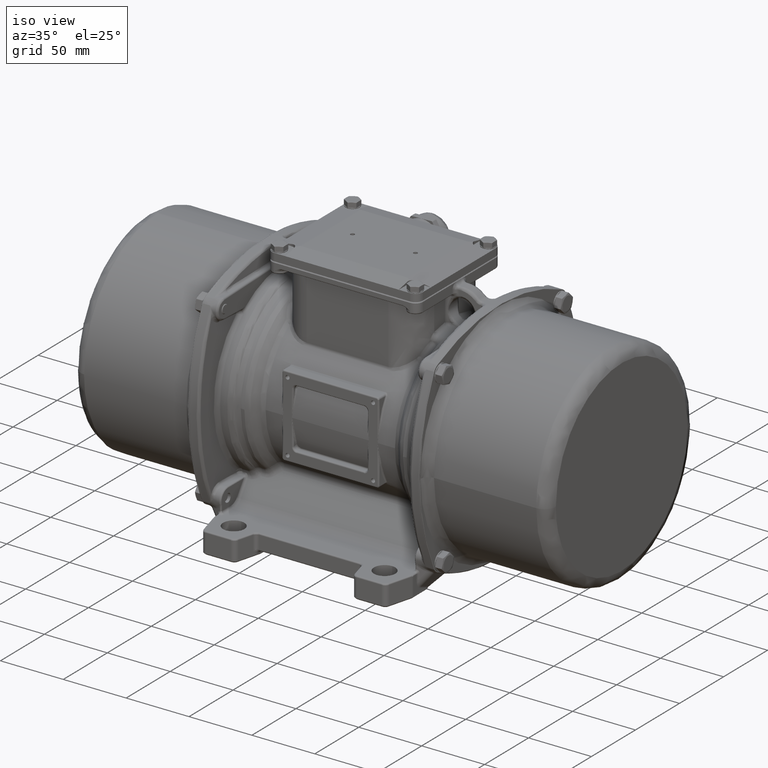
[diagram: clean part render]
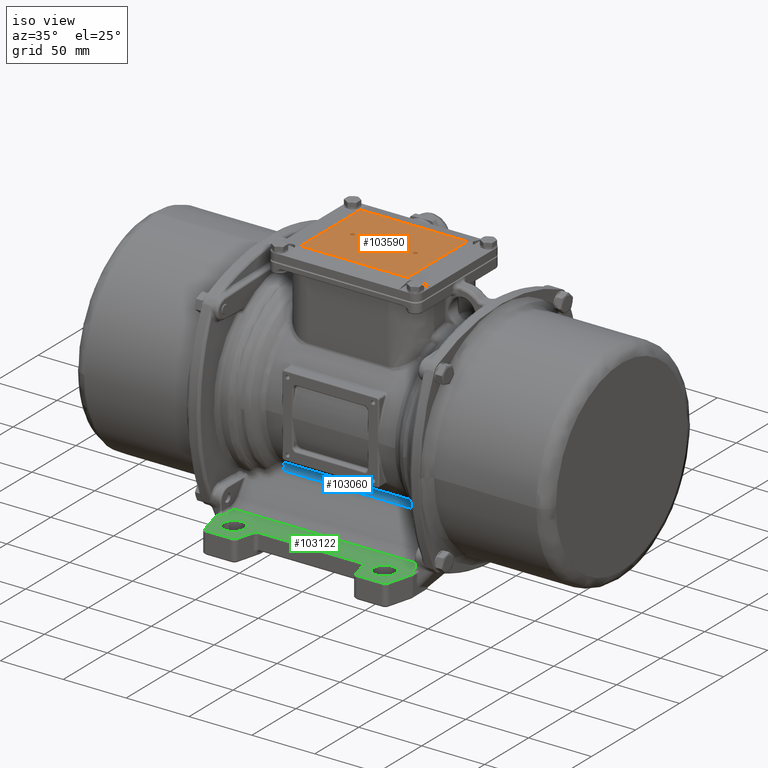
[diagram: same view with three faces highlighted in distinct colors, each labeled with its STEP entity id]
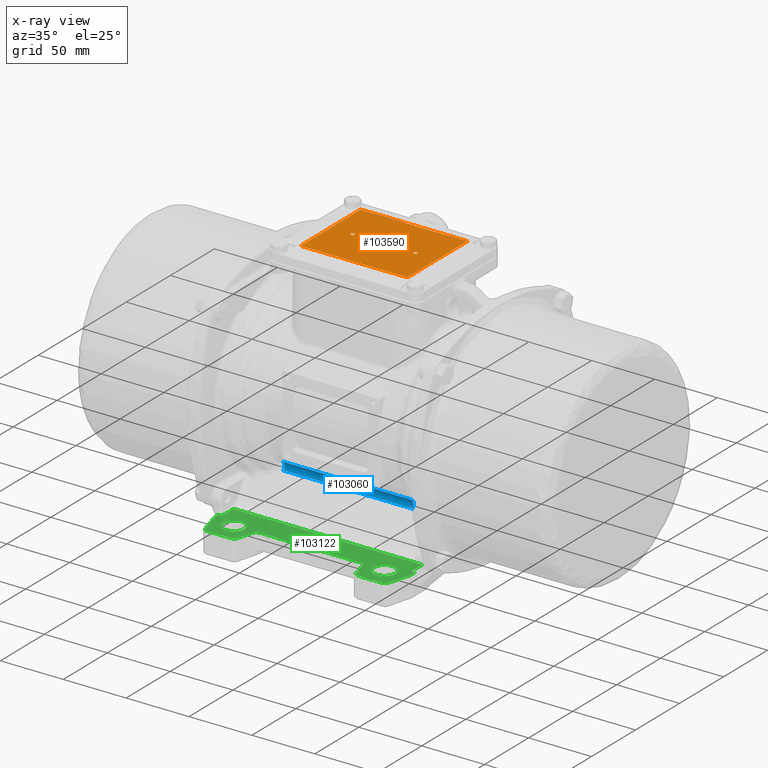
[diagram: x-ray of the same camera — body ghosted, the three highlighted faces saturated]
A machine part, iso view with three faces highlighted in distinct colors.
The next image is the same camera in x-ray (body ghosted, the three faces saturated) — at least one of them is partly hidden behind the body in this view.
Their STEP definitions:

[orange] entity #103590 — the highlighted planar face has unit normal (0, 0, 1).
#15173 = EDGE_CURVE ( 'NONE', #136444, #136411, #65429, .T. ) ;
#15203 = EDGE_CURVE ( 'NONE', #136368, #136385, #65531, .T. ) ;
#15311 = EDGE_CURVE ( 'NONE', #110381, #110453, #65780, .T. ) ;
#15321 = EDGE_CURVE ( 'NONE', #110414, #110453, #65855, .T. ) ;
#15331 = EDGE_CURVE ( 'NONE', #110381, #110508, #65933, .T. ) ;
#15333 = EDGE_CURVE ( 'NONE', #110508, #110414, #65949, .T. ) ;
#20590 = FACE_OUTER_BOUND ( 'NONE', #211546, .T. ) ;
#20604 = FACE_BOUND ( 'NONE', #211531, .T. ) ;
#20612 = FACE_BOUND ( 'NONE', #211542, .T. ) ;
#31308 = AXIS2_PLACEMENT_3D ( 'NONE', #188839, #188851, #188852 ) ;
#31337 = AXIS2_PLACEMENT_3D ( 'NONE', #64050, #64053, #64055 ) ;
#46465 = CARTESIAN_POINT ( 'NONE',  ( 20.00000715255210100, 1.599996662135698200, 41.00000190734859700 ) ) ;
#46499 = CARTESIAN_POINT ( 'NONE',  ( 20.00000715255210100, -1.600003337864301900, 41.00000190734859700 ) ) ;
#46551 = CARTESIAN_POINT ( 'NONE',  ( -29.99999284744789900, -1.600003337864301900, 41.00000190734859700 ) ) ;
#46615 = CARTESIAN_POINT ( 'NONE',  ( -29.99999284744789900, 1.599996662135698200, 41.00000190734859700 ) ) ;
#64050 = CARTESIAN_POINT ( 'NONE',  ( 20.00000715255210100, -3.337864301880305100E-006, 41.00000190734859700 ) ) ;
#64053 = DIRECTION ( 'NONE',  ( 0.0000000000000000000, -1.309383279245300100E-015, -1.000000000000000000 ) ) ;
#64055 = DIRECTION ( 'NONE',  ( 0.0000000000000000000, 1.000000000000000000, 0.0000000000000000000 ) ) ;
#65079 = CARTESIAN_POINT ( 'NONE',  ( -4.999999083579640000, 33.99999990953830300, 41.00000190734859700 ) ) ;
#65081 = DIRECTION ( 'NONE',  ( -1.000000000000000000, 0.0000000000000000000, 0.0000000000000000000 ) ) ;
#65140 = CARTESIAN_POINT ( 'NONE',  ( -47.49999908357960300, -1.279080140154791900E-005, 41.00000190734859700 ) ) ;
#65155 = DIRECTION ( 'NONE',  ( 0.0000000000000000000, 1.000000000000000000, 0.0000000000000000000 ) ) ;
#65200 = CARTESIAN_POINT ( 'NONE',  ( 37.50000091642039700, -1.175615111162486000E-005, 41.00000190734859700 ) ) ;
#65202 = DIRECTION ( 'NONE',  ( 0.0000000000000000000, -1.000000000000000000, 0.0000000000000000000 ) ) ;
#65209 = CARTESIAN_POINT ( 'NONE',  ( -4.999999419126700300, -34.00000009071810300, 41.00000190734859700 ) ) ;
#65211 = DIRECTION ( 'NONE',  ( -1.000000000000000000, 0.0000000000000000000, 0.0000000000000000000 ) ) ;
#65429 = CIRCLE ( 'NONE', #31308, 1.600000000000000100 ) ;
#65531 = CIRCLE ( 'NONE', #31337, 1.600000000000000100 ) ;
#65780 = LINE ( 'NONE', #65079, #65783 ) ;
#65783 = VECTOR ( 'NONE', #65081, 1000.000000000000000 ) ;
#65826 = VECTOR ( 'NONE', #65155, 1000.000000000000000 ) ;
#65855 = LINE ( 'NONE', #65140, #65826 ) ;
#65933 = LINE ( 'NONE', #65200, #65937 ) ;
#65937 = VECTOR ( 'NONE', #65202, 1000.000000000000000 ) ;
#65949 = LINE ( 'NONE', #65209, #65954 ) ;
#65954 = VECTOR ( 'NONE', #65211, 1000.000000000000000 ) ;
#67187 = CIRCLE ( 'NONE', #211773, 1.600000000000000100 ) ;
#67212 = CIRCLE ( 'NONE', #211788, 1.600000000000000100 ) ;
#82566 = CARTESIAN_POINT ( 'NONE',  ( 20.00000715255210100, -3.337864301880305100E-006, 41.00000190734859700 ) ) ;
#82592 = DIRECTION ( 'NONE',  ( 0.0000000000000000000, -1.309383279245300100E-015, -1.000000000000000000 ) ) ;
#82595 = DIRECTION ( 'NONE',  ( 0.0000000000000000000, 1.000000000000000000, 0.0000000000000000000 ) ) ;
#82727 = CARTESIAN_POINT ( 'NONE',  ( -29.99999284744789900, -3.337864301880305100E-006, 41.00000190734859700 ) ) ;
#82732 = DIRECTION ( 'NONE',  ( 0.0000000000000000000, -1.309383279245300100E-015, -1.000000000000000000 ) ) ;
#82735 = DIRECTION ( 'NONE',  ( 0.0000000000000000000, 1.000000000000000000, 0.0000000000000000000 ) ) ;
#103590 = ADVANCED_FACE ( 'NONE', ( #20604, #20612, #20590 ), #113558, .T. ) ;
#110381 = VERTEX_POINT ( 'NONE', #239608 ) ;
#110414 = VERTEX_POINT ( 'NONE', #239632 ) ;
#110453 = VERTEX_POINT ( 'NONE', #239659 ) ;
#110508 = VERTEX_POINT ( 'NONE', #239700 ) ;
#113558 = PLANE ( 'NONE',  #210592 ) ;
#113571 = CARTESIAN_POINT ( 'NONE',  ( -47.49999908383610100, -34.00000009097460200, 41.00000190734859700 ) ) ;
#113592 = DIRECTION ( 'NONE',  ( 0.0000000000000000000, 0.0000000000000000000, 1.000000000000000000 ) ) ;
#113595 = DIRECTION ( 'NONE',  ( 1.000000000000000000, 0.0000000000000000000, 0.0000000000000000000 ) ) ;
#121501 = EDGE_CURVE ( 'NONE', #136385, #136368, #67187, .T. ) ;
#121509 = EDGE_CURVE ( 'NONE', #136411, #136444, #67212, .T. ) ;
#136368 = VERTEX_POINT ( 'NONE', #46465 ) ;
#136385 = VERTEX_POINT ( 'NONE', #46499 ) ;
#136411 = VERTEX_POINT ( 'NONE', #46551 ) ;
#136444 = VERTEX_POINT ( 'NONE', #46615 ) ;
#188839 = CARTESIAN_POINT ( 'NONE',  ( -29.99999284744789900, -3.337864301880305100E-006, 41.00000190734859700 ) ) ;
#188851 = DIRECTION ( 'NONE',  ( 0.0000000000000000000, -1.309383279245300100E-015, -1.000000000000000000 ) ) ;
#188852 = DIRECTION ( 'NONE',  ( 0.0000000000000000000, 1.000000000000000000, 0.0000000000000000000 ) ) ;
#210592 = AXIS2_PLACEMENT_3D ( 'NONE', #113571, #113592, #113595 ) ;
#211531 = EDGE_LOOP ( 'NONE', ( #221865, #221871 ) ) ;
#211542 = EDGE_LOOP ( 'NONE', ( #221875, #221880 ) ) ;
#211546 = EDGE_LOOP ( 'NONE', ( #221884, #221888, #221894, #221898 ) ) ;
#211773 = AXIS2_PLACEMENT_3D ( 'NONE', #82566, #82592, #82595 ) ;
#211788 = AXIS2_PLACEMENT_3D ( 'NONE', #82727, #82732, #82735 ) ;
#221865 = ORIENTED_EDGE ( 'NONE', *, *, #15203, .T. ) ;
#221871 = ORIENTED_EDGE ( 'NONE', *, *, #121501, .T. ) ;
#221875 = ORIENTED_EDGE ( 'NONE', *, *, #15173, .T. ) ;
#221880 = ORIENTED_EDGE ( 'NONE', *, *, #121509, .T. ) ;
#221884 = ORIENTED_EDGE ( 'NONE', *, *, #15321, .F. ) ;
#221888 = ORIENTED_EDGE ( 'NONE', *, *, #15333, .F. ) ;
#221894 = ORIENTED_EDGE ( 'NONE', *, *, #15331, .F. ) ;
#221898 = ORIENTED_EDGE ( 'NONE', *, *, #15311, .T. ) ;
#239608 = CARTESIAN_POINT ( 'NONE',  ( 37.50000091657879900, 33.99999990940705200, 41.00000190733504700 ) ) ;
#239632 = CARTESIAN_POINT ( 'NONE',  ( -47.49999908357960300, -34.00000009071810300, 41.00000190734859700 ) ) ;
#239659 = CARTESIAN_POINT ( 'NONE',  ( -47.49999908373800400, 33.99999990940705200, 41.00000190733499700 ) ) ;
#239700 = CARTESIAN_POINT ( 'NONE',  ( 37.50000091642039700, -34.00000009071810300, 41.00000190734859700 ) ) ;

[blue] entity #103060 — the highlighted cylindrical surface (edge-blend (fillet) strip) has radius 5 mm, axis along (1, 0, 0).
#3709 = EDGE_CURVE ( 'NONE', #137364, #137360, #64981, .T. ) ;
#15590 = ORIENTED_EDGE ( 'NONE', *, *, #241487, .F. ) ;
#15592 = ORIENTED_EDGE ( 'NONE', *, *, #240934, .T. ) ;
#15594 = ORIENTED_EDGE ( 'NONE', *, *, #3709, .T. ) ;
#15596 = ORIENTED_EDGE ( 'NONE', *, *, #240932, .T. ) ;
#19595 = VECTOR ( 'NONE', #128195, 1000.000000000000000 ) ;
#19600 = LINE ( 'NONE', #128191, #19595 ) ;
#19962 = CYLINDRICAL_SURFACE ( 'NONE', #210143, 5.000000000000004400 ) ;
#19963 = FACE_OUTER_BOUND ( 'NONE', #121821, .T. ) ;
#43470 = DIRECTION ( 'NONE',  ( 2.775557561562889000E-015, 0.0000000000000000000, -1.000000000000000000 ) ) ;
#43621 = DIRECTION ( 'NONE',  ( 1.000000000000000000, 8.769931600198920200E-016, 2.428596443132010400E-015 ) ) ;
#43623 = CARTESIAN_POINT ( 'NONE',  ( -56.42893219361440100, -44.87479423535705100, -117.3968248936609900 ) ) ;
#47901 = CARTESIAN_POINT ( 'NONE',  ( -56.42893219365289800, -41.47518861136869400, -113.7303986225696100 ) ) ;
#47905 = CARTESIAN_POINT ( 'NONE',  ( 46.42890622874769900, -41.47518861136869400, -113.7303986225696100 ) ) ;
#55827 = CARTESIAN_POINT ( 'NONE',  ( 46.42890622869200000, -40.77903401391205300, -120.2647070754160000 ) ) ;
#55871 = CARTESIAN_POINT ( 'NONE',  ( -56.42893219361440100, -40.77903401391205300, -120.2647070754160000 ) ) ;
#64981 = LINE ( 'NONE', #187256, #65005 ) ;
#65005 = VECTOR ( 'NONE', #187257, 1000.000000000000000 ) ;
#96346 = CARTESIAN_POINT ( 'NONE',  ( -56.42893219365289800, -41.47518861136869400, -113.7303986225696100 ) ) ;
#96357 = CARTESIAN_POINT ( 'NONE',  ( -56.42893219361439300, -41.03704868611879400, -114.1366533359506700 ) ) ;
#96375 = CARTESIAN_POINT ( 'NONE',  ( 46.42890622869200700, -40.43632053978702600, -119.7752615104607500 ) ) ;
#96380 = CARTESIAN_POINT ( 'NONE',  ( 46.42890622869200000, -40.77903401391205300, -120.2647070754160000 ) ) ;
#96383 = CARTESIAN_POINT ( 'NONE',  ( -56.42893219361440800, -40.67262008694561400, -114.6221642093927900 ) ) ;
#96386 = CARTESIAN_POINT ( 'NONE',  ( -56.42893219361437900, -40.13713735691928300, -115.6904788594133000 ) ) ;
#96389 = CARTESIAN_POINT ( 'NONE',  ( -56.42893219361439300, -39.96622974702847800, -116.2729903193926600 ) ) ;
#96392 = CARTESIAN_POINT ( 'NONE',  ( -56.42893219361440800, -39.83963225351630700, -117.4612710186558500 ) ) ;
#96395 = CARTESIAN_POINT ( 'NONE',  ( -56.42893219361438600, -39.88397701001599000, -118.0667151157422800 ) ) ;
#96397 = CARTESIAN_POINT ( 'NONE',  ( -56.42893219361438600, -40.18236197580523600, -119.2238686741760600 ) ) ;
#96400 = CARTESIAN_POINT ( 'NONE',  ( -56.42893219361438600, -40.43632053978700500, -119.7752615104607900 ) ) ;
#96403 = CARTESIAN_POINT ( 'NONE',  ( -56.42893219361440100, -40.77903401391205300, -120.2647070754160000 ) ) ;
#96414 = CARTESIAN_POINT ( 'NONE',  ( 46.42890622869199300, -40.18236197580522200, -119.2238686741760000 ) ) ;
#96417 = CARTESIAN_POINT ( 'NONE',  ( 46.42890622869200000, -39.88397701001591100, -118.0667151157422000 ) ) ;
#96420 = CARTESIAN_POINT ( 'NONE',  ( 46.42890622869200000, -39.83963225351620000, -117.4612710186557400 ) ) ;
#96423 = CARTESIAN_POINT ( 'NONE',  ( 46.42890622869200000, -39.96622974702836500, -116.2729903193924900 ) ) ;
#96426 = CARTESIAN_POINT ( 'NONE',  ( 46.42890622869200000, -40.13713735691917600, -115.6904788594131600 ) ) ;
#96429 = CARTESIAN_POINT ( 'NONE',  ( 46.42890622869200000, -40.67262008694547900, -114.6221642093925700 ) ) ;
#96432 = CARTESIAN_POINT ( 'NONE',  ( 46.42890622869198600, -41.03704868611868800, -114.1366533359504400 ) ) ;
#96435 = CARTESIAN_POINT ( 'NONE',  ( 46.42890622874769900, -41.47518861136869400, -113.7303986225696100 ) ) ;
#103060 = ADVANCED_FACE ( 'NONE', ( #19963 ), #19962, .F. ) ;
#121821 = EDGE_LOOP ( 'NONE', ( #15590, #15592, #15594, #15596 ) ) ;
#128191 = CARTESIAN_POINT ( 'NONE',  ( -5.000000178813910300, -40.77903401391214500, -120.2647070754160000 ) ) ;
#128195 = DIRECTION ( 'NONE',  ( -1.000000000000000000, 0.0000000000000000000, 0.0000000000000000000 ) ) ;
#132214 = B_SPLINE_CURVE_WITH_KNOTS ( 'NONE', 3,
 ( #96346, #96357, #96383, #96386, #96389, #96392, #96395, #96397, #96400, #96403 ),
 .UNSPECIFIED., .F., .F.,
 ( 4, 2, 2, 2, 4 ),
 ( 0.0000000000000000000, 0.2500000000000000000, 0.5000000000000000000, 0.7500000000000000000, 1.000000000000000000 ),
 .UNSPECIFIED. ) ;
#132218 = B_SPLINE_CURVE_WITH_KNOTS ( 'NONE', 3,
 ( #96380, #96375, #96414, #96417, #96420, #96423, #96426, #96429, #96432, #96435 ),
 .UNSPECIFIED., .F., .F.,
 ( 4, 2, 2, 2, 4 ),
 ( 0.0000000000000000000, 0.2500000000000000000, 0.5000000000000000000, 0.7500000000000000000, 1.000000000000000000 ),
 .UNSPECIFIED. ) ;
#137360 = VERTEX_POINT ( 'NONE', #47901 ) ;
#137364 = VERTEX_POINT ( 'NONE', #47905 ) ;
#183293 = VERTEX_POINT ( 'NONE', #55827 ) ;
#183315 = VERTEX_POINT ( 'NONE', #55871 ) ;
#187256 = CARTESIAN_POINT ( 'NONE',  ( -56.42893219361440100, -41.47518861146639300, -113.7303986224792000 ) ) ;
#187257 = DIRECTION ( 'NONE',  ( -1.000000000000000000, -8.769931600198920200E-016, -2.428596443132010400E-015 ) ) ;
#210143 = AXIS2_PLACEMENT_3D ( 'NONE', #43623, #43621, #43470 ) ;
#240932 = EDGE_CURVE ( 'NONE', #137360, #183315, #132214, .T. ) ;
#240934 = EDGE_CURVE ( 'NONE', #183293, #137364, #132218, .T. ) ;
#241487 = EDGE_CURVE ( 'NONE', #183293, #183315, #19600, .T. ) ;

[green] entity #103122 — the highlighted planar face has unit normal (0, -0, 1).
#3490 = EDGE_CURVE ( 'NONE', #137128, #137218, #64883, .T. ) ;
#3508 = EDGE_CURVE ( 'NONE', #137171, #137090, #64897, .T. ) ;
#16214 = ORIENTED_EDGE ( 'NONE', *, *, #3490, .T. ) ;
#16216 = ORIENTED_EDGE ( 'NONE', *, *, #241465, .T. ) ;
#16218 = ORIENTED_EDGE ( 'NONE', *, *, #3508, .T. ) ;
#16220 = ORIENTED_EDGE ( 'NONE', *, *, #241463, .T. ) ;
#16222 = ORIENTED_EDGE ( 'NONE', *, *, #241457, .T. ) ;
#16224 = ORIENTED_EDGE ( 'NONE', *, *, #241461, .T. ) ;
#16225 = ORIENTED_EDGE ( 'NONE', *, *, #241381, .T. ) ;
#16227 = ORIENTED_EDGE ( 'NONE', *, *, #241390, .T. ) ;
#16229 = ORIENTED_EDGE ( 'NONE', *, *, #241340, .T. ) ;
#16231 = ORIENTED_EDGE ( 'NONE', *, *, #241398, .T. ) ;
#16233 = ORIENTED_EDGE ( 'NONE', *, *, #241396, .T. ) ;
#16235 = ORIENTED_EDGE ( 'NONE', *, *, #241400, .T. ) ;
#16237 = ORIENTED_EDGE ( 'NONE', *, *, #241411, .T. ) ;
#16238 = ORIENTED_EDGE ( 'NONE', *, *, #241416, .T. ) ;
#16240 = ORIENTED_EDGE ( 'NONE', *, *, #241413, .T. ) ;
#16242 = ORIENTED_EDGE ( 'NONE', *, *, #241422, .T. ) ;
#16244 = ORIENTED_EDGE ( 'NONE', *, *, #241429, .T. ) ;
#16246 = ORIENTED_EDGE ( 'NONE', *, *, #241433, .T. ) ;
#16248 = ORIENTED_EDGE ( 'NONE', *, *, #241431, .T. ) ;
#16250 = ORIENTED_EDGE ( 'NONE', *, *, #241435, .T. ) ;
#16251 = ORIENTED_EDGE ( 'NONE', *, *, #241446, .T. ) ;
#16253 = ORIENTED_EDGE ( 'NONE', *, *, #241409, .T. ) ;
#16255 = ORIENTED_EDGE ( 'NONE', *, *, #73689, .T. ) ;
#16257 = ORIENTED_EDGE ( 'NONE', *, *, #73692, .T. ) ;
#16259 = ORIENTED_EDGE ( 'NONE', *, *, #73691, .T. ) ;
#16261 = ORIENTED_EDGE ( 'NONE', *, *, #241448, .T. ) ;
#19564 = VECTOR ( 'NONE', #127474, 1000.000000000000100 ) ;
#19570 = LINE ( 'NONE', #127608, #19583 ) ;
#19572 = LINE ( 'NONE', #127516, #19579 ) ;
#19574 = LINE ( 'NONE', #127473, #19564 ) ;
#19575 = LINE ( 'NONE', #127553, #19581 ) ;
#19577 = LINE ( 'NONE', #127511, #19578 ) ;
#19578 = VECTOR ( 'NONE', #127514, 1000.000000000000000 ) ;
#19579 = VECTOR ( 'NONE', #127519, 1000.000000000000100 ) ;
#19580 = VECTOR ( 'NONE', #127596, 1000.000000000000000 ) ;
#19581 = VECTOR ( 'NONE', #127556, 1000.000000000000000 ) ;
#19582 = LINE ( 'NONE', #127594, #19580 ) ;
#19583 = VECTOR ( 'NONE', #127620, 1000.000000000000000 ) ;
#19584 = VECTOR ( 'NONE', #127680, 1000.000000000000000 ) ;
#19586 = LINE ( 'NONE', #127774, #19591 ) ;
#19587 = LINE ( 'NONE', #127682, #19589 ) ;
#19588 = LINE ( 'NONE', #127677, #19584 ) ;
#19589 = VECTOR ( 'NONE', #127684, 1000.000000000000100 ) ;
#19590 = VECTOR ( 'NONE', #127961, 1000.000000000000000 ) ;
#19591 = VECTOR ( 'NONE', #127779, 1000.000000000000000 ) ;
#19592 = LINE ( 'NONE', #127958, #19590 ) ;
#19596 = CIRCLE ( 'NONE', #201884, 8.499999999999992900 ) ;
#19598 = CIRCLE ( 'NONE', #201886, 8.499999999999992900 ) ;
#20035 = FACE_BOUND ( 'NONE', #121983, .T. ) ;
#20037 = FACE_BOUND ( 'NONE', #123135, .T. ) ;
#20045 = FACE_OUTER_BOUND ( 'NONE', #121981, .T. ) ;
#31264 = AXIS2_PLACEMENT_3D ( 'NONE', #76789, #76792, #76794 ) ;
#31271 = AXIS2_PLACEMENT_3D ( 'NONE', #76796, #76841, #76843 ) ;
#47274 = CARTESIAN_POINT ( 'NONE',  ( 72.99999999452009500, -76.80346503869479600, -145.4999981140630000 ) ) ;
#47276 = CARTESIAN_POINT ( 'NONE',  ( -82.82962913692519200, -80.61187475846260500, -145.4999981140630000 ) ) ;
#47278 = CARTESIAN_POINT ( 'NONE',  ( -83.00000000547990500, -79.31777953295001300, -145.4999981140630000 ) ) ;
#47280 = CARTESIAN_POINT ( 'NONE',  ( -77.82846936198549800, -99.27645713530770900, -145.4999981140630000 ) ) ;
#47282 = CARTESIAN_POINT ( 'NONE',  ( -74.93069188311831400, -101.5000000000000000, -145.4999981140630000 ) ) ;
#47284 = CARTESIAN_POINT ( 'NONE',  ( -55.06930812784159500, -101.5000000000000000, -145.4999981140630000 ) ) ;
#47286 = CARTESIAN_POINT ( 'NONE',  ( -52.17153064897440400, -99.27645713530770900, -145.4999981140630000 ) ) ;
#47287 = CARTESIAN_POINT ( 'NONE',  ( -48.87261164960040100, -86.96472381958990600, -145.4999981140630000 ) ) ;
#47289 = CARTESIAN_POINT ( 'NONE',  ( -45.00890834444410200, -84.00000000000000000, -145.4999981140630000 ) ) ;
#47291 = CARTESIAN_POINT ( 'NONE',  ( 35.00890833348454800, -84.00000000000000000, -145.4999981140630000 ) ) ;
#47293 = CARTESIAN_POINT ( 'NONE',  ( 38.87261163864070600, -86.96472381958990600, -145.4999981140630000 ) ) ;
#47295 = CARTESIAN_POINT ( 'NONE',  ( 42.17153063801464400, -99.27645713530770900, -145.4999981140630000 ) ) ;
#47297 = CARTESIAN_POINT ( 'NONE',  ( 45.06930811688180000, -101.5000000000000000, -145.4999981140630000 ) ) ;
#47299 = CARTESIAN_POINT ( 'NONE',  ( 64.93069187215849100, -101.5000000000000000, -145.4999981140630000 ) ) ;
#47301 = CARTESIAN_POINT ( 'NONE',  ( 67.82846935102560300, -99.27645713530770900, -145.4999981140630000 ) ) ;
#47303 = CARTESIAN_POINT ( 'NONE',  ( 72.82962912596539700, -80.61187475846260500, -145.4999981140630000 ) ) ;
#47305 = CARTESIAN_POINT ( 'NONE',  ( 72.99999999452009500, -79.31777953295011200, -145.4999981140630000 ) ) ;
#47307 = CARTESIAN_POINT ( 'NONE',  ( -79.99998842279129000, -73.80346503871850000, -145.4999981140630000 ) ) ;
#47308 = CARTESIAN_POINT ( 'NONE',  ( -79.99998842279129000, -63.65464553360620000, -145.4999981140630000 ) ) ;
#47631 = CARTESIAN_POINT ( 'NONE',  ( 54.99999999452009500, -76.50000000000001400, -145.4999981140629800 ) ) ;
#47669 = CARTESIAN_POINT ( 'NONE',  ( -65.00000000547989000, -93.50000000000000000, -145.4999981140630300 ) ) ;
#47712 = CARTESIAN_POINT ( 'NONE',  ( 54.99999999452009500, -93.50000000000000000, -145.4999981140630300 ) ) ;
#47759 = CARTESIAN_POINT ( 'NONE',  ( -65.00000000547989000, -76.50000000000001400, -145.4999981140629800 ) ) ;
#50033 = CARTESIAN_POINT ( 'NONE',  ( 69.99998806516340700, -73.80346503871850000, -145.4999981140630000 ) ) ;
#50035 = CARTESIAN_POINT ( 'NONE',  ( 69.99998806516340700, -63.65464553360620000, -145.4999981140630000 ) ) ;
#55861 = CARTESIAN_POINT ( 'NONE',  ( -83.00000000547990500, -76.80346503869610300, -145.4999981140630000 ) ) ;
#64883 = CIRCLE ( 'NONE', #31264, 8.499999999999992900 ) ;
#64897 = CIRCLE ( 'NONE', #31271, 8.499999999999992900 ) ;
#67919 = PLANE ( 'NONE',  #210185 ) ;
#67922 = CARTESIAN_POINT ( 'NONE',  ( 73.00253362126279900, -101.5025336267430000, -145.4999981140630000 ) ) ;
#67925 = DIRECTION ( 'NONE',  ( 0.0000000000000000000, -0.0000000000000000000, 1.000000000000000000 ) ) ;
#67927 = DIRECTION ( 'NONE',  ( 0.0000000000000000000, 1.000000000000000000, 0.0000000000000000000 ) ) ;
#73689 = EDGE_CURVE ( 'NONE', #136790, #158788, #77942, .T. ) ;
#73691 = EDGE_CURVE ( 'NONE', #158790, #136808, #110902, .T. ) ;
#73692 = EDGE_CURVE ( 'NONE', #158788, #158790, #110911, .T. ) ;
#76789 = CARTESIAN_POINT ( 'NONE',  ( -65.00000000547989000, -85.00000000000000000, -145.4999981140630000 ) ) ;
#76792 = DIRECTION ( 'NONE',  ( -0.0000000000000000000, 2.449021377849590300E-015, -1.000000000000000000 ) ) ;
#76794 = DIRECTION ( 'NONE',  ( 0.0000000000000000000, -1.000000000000000000, -3.265361837132816000E-015 ) ) ;
#76796 = CARTESIAN_POINT ( 'NONE',  ( 54.99999999452009500, -85.00000000000000000, -145.4999981140630000 ) ) ;
#76841 = DIRECTION ( 'NONE',  ( -0.0000000000000000000, 2.449021377849590300E-015, -1.000000000000000000 ) ) ;
#76843 = DIRECTION ( 'NONE',  ( 0.0000000000000000000, -1.000000000000000000, -3.265361837132816000E-015 ) ) ;
#77942 = B_SPLINE_CURVE_WITH_KNOTS ( 'NONE', 3,
 ( #82372, #82423, #82426, #82428, #82430, #82433, #82436, #82438, #82441, #82444, #82445, #82447, #82450, #82453, #82456, #82458, #82461 ),
 .UNSPECIFIED., .F., .F.,
 ( 4, 2, 2, 2, 1, 2, 2, 2, 4 ),
 ( 0.0000000000000000000, 0.1250000000000066900, 0.2500000000000133800, 0.5000000000000186500, 0.6250000000000212100, 0.6875000000000187600, 0.7500000000000163200, 0.8750000000000082200, 1.000000000000000000 ),
 .UNSPECIFIED. ) ;
#82372 = CARTESIAN_POINT ( 'NONE',  ( 72.99999999452009500, -76.80346503869479600, -145.4999981140630000 ) ) ;
#82421 = CARTESIAN_POINT ( 'NONE',  ( -81.99998842279130400, -63.65464553360620000, -145.4999981140632000 ) ) ;
#82423 = CARTESIAN_POINT ( 'NONE',  ( 72.80447388615544900, -76.80339288044311300, -145.4999981140630300 ) ) ;
#82426 = CARTESIAN_POINT ( 'NONE',  ( 72.61011646456927300, -76.78418675041707800, -145.4999981140630000 ) ) ;
#82428 = CARTESIAN_POINT ( 'NONE',  ( 72.22175806466631800, -76.70711341277058200, -145.4999981140629800 ) ) ;
#82430 = CARTESIAN_POINT ( 'NONE',  ( 72.03536909306190200, -76.65093049761192400, -145.4999981140630000 ) ) ;
#82433 = CARTESIAN_POINT ( 'NONE',  ( 71.48509991599482300, -76.42346018512246500, -145.4999981140630300 ) ) ;
#82436 = CARTESIAN_POINT ( 'NONE',  ( 71.16016361480592400, -76.20617628627850600, -145.4999981140630000 ) ) ;
#82438 = CARTESIAN_POINT ( 'NONE',  ( 70.73792610150567800, -75.78409625676845000, -145.4999981140629800 ) ) ;
#82441 = CARTESIAN_POINT ( 'NONE',  ( 70.55107655688688300, -75.55691731079052400, -145.4999981140630000 ) ) ;
#82444 = CARTESIAN_POINT ( 'NONE',  ( 70.40063083031512300, -75.30552996797830200, -145.4999981140630000 ) ) ;
#82445 = CARTESIAN_POINT ( 'NONE',  ( 70.30842341661106300, -75.13255876236252100, -145.4999981140629800 ) ) ;
#82447 = CARTESIAN_POINT ( 'NONE',  ( 70.26582495051464200, -75.04207926309747700, -145.4999981140629800 ) ) ;
#82450 = CARTESIAN_POINT ( 'NONE',  ( 70.15340192573876300, -74.77039574721091200, -145.4999981140630300 ) ) ;
#82453 = CARTESIAN_POINT ( 'NONE',  ( 70.09627712499083400, -74.58100893564662200, -145.4999981140630000 ) ) ;
#82456 = CARTESIAN_POINT ( 'NONE',  ( 70.01933356453223200, -74.19404614178887400, -145.4999981140630000 ) ) ;
#82458 = CARTESIAN_POINT ( 'NONE',  ( 70.00006113799949500, -73.99935864178912900, -145.4999981140629500 ) ) ;
#82461 = CARTESIAN_POINT ( 'NONE',  ( 69.99998806516340700, -73.80346503871850000, -145.4999981140630000 ) ) ;
#82475 = DIRECTION ( 'NONE',  ( -1.000000000000000000, -3.604620760159645100E-016, -1.081386228047892000E-015 ) ) ;
#82479 = CARTESIAN_POINT ( 'NONE',  ( 69.99998806516340700, -63.65464553360620000, -145.4999981140630000 ) ) ;
#82481 = DIRECTION ( 'NONE',  ( -0.0000000000000000000, 1.000000000000000000, -2.734857546894750100E-015 ) ) ;
#100968 = B_SPLINE_CURVE_WITH_KNOTS ( 'NONE', 3,
 ( #116817, #116814, #116829, #116831, #116833, #116836, #116838, #116841, #116844, #116847 ),
 .UNSPECIFIED., .F., .F.,
 ( 4, 2, 2, 2, 4 ),
 ( 0.0000000000000000000, 0.2500000000000000000, 0.5000000000000000000, 0.7500000000000000000, 1.000000000000000000 ),
 .UNSPECIFIED. ) ;
#101003 = B_SPLINE_CURVE_WITH_KNOTS ( 'NONE', 3,
 ( #117114, #117109, #117134, #117137 ),
 .UNSPECIFIED., .F., .F.,
 ( 4, 4 ),
 ( 0.0000000000000000000, 1.000000000000000000 ),
 .UNSPECIFIED. ) ;
#101021 = B_SPLINE_CURVE_WITH_KNOTS ( 'NONE', 3,
 ( #127487, #127485, #127498, #127500, #127501, #127503, #127504, #127506, #127508, #127509 ),
 .UNSPECIFIED., .F., .F.,
 ( 4, 2, 2, 2, 4 ),
 ( 0.0000000000000000000, 0.2500000000000000000, 0.5000000000000000000, 0.7500000000000000000, 1.000000000000000000 ),
 .UNSPECIFIED. ) ;
#101033 = B_SPLINE_CURVE_WITH_KNOTS ( 'NONE', 3,
 ( #127555, #127543, #127562, #127563, #127565, #127567, #127568, #127570, #127572, #127573 ),
 .UNSPECIFIED., .F., .F.,
 ( 4, 2, 2, 2, 4 ),
 ( 0.0000000000000000000, 0.2500000000000000000, 0.5000000000000000000, 0.7500000000000000000, 1.000000000000000000 ),
 .UNSPECIFIED. ) ;
#101036 = B_SPLINE_CURVE_WITH_KNOTS ( 'NONE', 3,
 ( #127560, #127558, #127579, #127580, #127582, #127584, #127585, #127587, #127588, #127590 ),
 .UNSPECIFIED., .F., .F.,
 ( 4, 2, 2, 2, 4 ),
 ( 0.0000000000000000000, 0.2500000000000000000, 0.5000000000000000000, 0.7500000000000000000, 1.000000000000000000 ),
 .UNSPECIFIED. ) ;
#101050 = B_SPLINE_CURVE_WITH_KNOTS ( 'NONE', 3,
 ( #127634, #127635, #127648, #127650, #127651, #127653, #127655, #127656, #127658, #127659 ),
 .UNSPECIFIED., .F., .F.,
 ( 4, 2, 2, 2, 4 ),
 ( 0.0000000000000000000, 0.2500000000000000000, 0.5000000000000000000, 0.7500000000000000000, 1.000000000000000000 ),
 .UNSPECIFIED. ) ;
#101052 = B_SPLINE_CURVE_WITH_KNOTS ( 'NONE', 3,
 ( #127632, #127646, #127664, #127666, #127667, #127669, #127670, #127672, #127674, #127675 ),
 .UNSPECIFIED., .F., .F.,
 ( 4, 2, 2, 2, 4 ),
 ( 0.0000000000000000000, 0.2500000000000000000, 0.5000000000000000000, 0.7500000000000000000, 1.000000000000000000 ),
 .UNSPECIFIED. ) ;
#101067 = B_SPLINE_CURVE_WITH_KNOTS ( 'NONE', 3,
 ( #127745, #127740, #127768, #127772 ),
 .UNSPECIFIED., .F., .F.,
 ( 4, 4 ),
 ( 0.0000000000000000000, 1.000000000000000000 ),
 .UNSPECIFIED. ) ;
#101079 = B_SPLINE_CURVE_WITH_KNOTS ( 'NONE', 3,
 ( #127847, #127843, #127880, #127883, #127886, #127889, #127892, #127896, #127897, #127901, #127903, #127907, #127910, #127912, #127915, #127919, #127921 ),
 .UNSPECIFIED., .F., .F.,
 ( 4, 2, 2, 2, 1, 2, 2, 2, 4 ),
 ( 0.0000000000000000000, 0.1249999999999976100, 0.2499999999999952300, 0.4999999999999871200, 0.6249999999999831200, 0.6874999999999847900, 0.7499999999999864600, 0.8749999999999931200, 1.000000000000000000 ),
 .UNSPECIFIED. ) ;
#103122 = ADVANCED_FACE ( 'NONE', ( #20037, #20035, #20045 ), #67919, .T. ) ;
#110902 = LINE ( 'NONE', #82421, #110906 ) ;
#110906 = VECTOR ( 'NONE', #82475, 1000.000000000000000 ) ;
#110911 = LINE ( 'NONE', #82479, #110912 ) ;
#110912 = VECTOR ( 'NONE', #82481, 1000.000000000000000 ) ;
#116814 = CARTESIAN_POINT ( 'NONE',  ( -77.74292327235502900, -99.59524634096308700, -145.4999981140630000 ) ) ;
#116817 = CARTESIAN_POINT ( 'NONE',  ( -77.82846936198549800, -99.27645713530770900, -145.4999981140630000 ) ) ;
#116829 = CARTESIAN_POINT ( 'NONE',  ( -77.60805410048155300, -99.89261620824864000, -145.4999981140630000 ) ) ;
#116831 = CARTESIAN_POINT ( 'NONE',  ( -77.24214733957086300, -100.4408051898690100, -145.4999981140630000 ) ) ;
#116833 = CARTESIAN_POINT ( 'NONE',  ( -77.01886705032620700, -100.6790274568628100, -145.4999981140630000 ) ) ;
#116836 = CARTESIAN_POINT ( 'NONE',  ( -76.49508528996256000, -101.0810925848851100, -145.4999981140630000 ) ) ;
#116838 = CARTESIAN_POINT ( 'NONE',  ( -76.20745721294851200, -101.2347732421572300, -145.4999981140630000 ) ) ;
#116841 = CARTESIAN_POINT ( 'NONE',  ( -75.58256334510711800, -101.4468075348144500, -145.4999981140630300 ) ) ;
#116844 = CARTESIAN_POINT ( 'NONE',  ( -75.26112387980397500, -101.4998774053191400, -145.4999981140630000 ) ) ;
#116847 = CARTESIAN_POINT ( 'NONE',  ( -74.93069188311831400, -101.5000000000000000, -145.4999981140630000 ) ) ;
#117109 = CARTESIAN_POINT ( 'NONE',  ( -82.99991217943004100, -79.75660962905473600, -145.4999981140630000 ) ) ;
#117114 = CARTESIAN_POINT ( 'NONE',  ( -83.00000000547990500, -79.31777953295001300, -145.4999981140630000 ) ) ;
#117134 = CARTESIAN_POINT ( 'NONE',  ( -82.94312188991187900, -80.18797470422563800, -145.4999981140630000 ) ) ;
#117137 = CARTESIAN_POINT ( 'NONE',  ( -82.82962913692519200, -80.61187475846260500, -145.4999981140630000 ) ) ;
#121981 = EDGE_LOOP ( 'NONE', ( #16222, #16224, #16225, #16227, #16229, #16231, #16233, #16235, #16237, #16238, #16240, #16242, #16244, #16246, #16248, #16250, #16251, #16253, #16255, #16257, #16259, #16261 ) ) ;
#121983 = EDGE_LOOP ( 'NONE', ( #16218, #16220 ) ) ;
#123135 = EDGE_LOOP ( 'NONE', ( #16214, #16216 ) ) ;
#127473 = CARTESIAN_POINT ( 'NONE',  ( -82.82962913692519200, -80.61187475846260500, -145.4999981140630000 ) ) ;
#127474 = DIRECTION ( 'NONE',  ( 0.2588190451025194100, -0.9659258262890686500, 0.0000000000000000000 ) ) ;
#127485 = CARTESIAN_POINT ( 'NONE',  ( -54.73924044369026400, -101.4998775404839600, -145.4999981140630000 ) ) ;
#127487 = CARTESIAN_POINT ( 'NONE',  ( -55.06930812784159500, -101.5000000000000000, -145.4999981140630000 ) ) ;
#127498 = CARTESIAN_POINT ( 'NONE',  ( -54.41709649868660400, -101.4465689093094500, -145.4999981140630000 ) ) ;
#127500 = CARTESIAN_POINT ( 'NONE',  ( -53.79288296517778900, -101.2350118676621500, -145.4999981140630000 ) ) ;
#127501 = CARTESIAN_POINT ( 'NONE',  ( -53.50498873384142900, -101.0809961294468900, -145.4999981140630000 ) ) ;
#127503 = CARTESIAN_POINT ( 'NONE',  ( -52.98105894778942800, -100.6791239123011200, -145.4999981140630000 ) ) ;
#127504 = CARTESIAN_POINT ( 'NONE',  ( -52.75817120768561400, -100.4410720053035700, -145.4999981140630000 ) ) ;
#127506 = CARTESIAN_POINT ( 'NONE',  ( -52.39162737418240600, -99.89234939281394100, -145.4999981140630300 ) ) ;
#127508 = CARTESIAN_POINT ( 'NONE',  ( -52.25717116019587400, -99.59559820489693000, -145.4999981140630000 ) ) ;
#127509 = CARTESIAN_POINT ( 'NONE',  ( -52.17153064897440400, -99.27645713530770900, -145.4999981140630000 ) ) ;
#127511 = CARTESIAN_POINT ( 'NONE',  ( -5.000000005479850400, -101.5000000000000000, -145.4999981140630000 ) ) ;
#127514 = DIRECTION ( 'NONE',  ( 1.000000000000000000, 0.0000000000000000000, 0.0000000000000000000 ) ) ;
#127516 = CARTESIAN_POINT ( 'NONE',  ( -52.17153064897440400, -99.27645713530770900, -145.4999981140630000 ) ) ;
#127519 = DIRECTION ( 'NONE',  ( 0.2588190451025259600, 0.9659258262890668700, 0.0000000000000000000 ) ) ;
#127543 = CARTESIAN_POINT ( 'NONE',  ( -48.75860585782093200, -86.53972149761000300, -145.4999981140630000 ) ) ;
#127553 = CARTESIAN_POINT ( 'NONE',  ( 72.99999999452009500, -82.57732276680319200, -145.4999981140630000 ) ) ;
#127555 = CARTESIAN_POINT ( 'NONE',  ( -48.87261164960040100, -86.96472381958990600, -145.4999981140630000 ) ) ;
#127556 = DIRECTION ( 'NONE',  ( 0.0000000000000000000, 1.000000000000000000, 0.0000000000000000000 ) ) ;
#127558 = CARTESIAN_POINT ( 'NONE',  ( 35.44893592270219100, -84.00012244348525300, -145.4999981140630000 ) ) ;
#127560 = CARTESIAN_POINT ( 'NONE',  ( 35.00890833348454800, -84.00000000000000000, -145.4999981140630000 ) ) ;
#127562 = CARTESIAN_POINT ( 'NONE',  ( -48.57880533956949200, -86.14326593352521400, -145.4999981140630000 ) ) ;
#127563 = CARTESIAN_POINT ( 'NONE',  ( -48.09076824773932700, -85.41217220231800400, -145.4999981140630000 ) ) ;
#127565 = CARTESIAN_POINT ( 'NONE',  ( -47.79325187810413700, -85.09468892660932200, -145.4999981140630000 ) ) ;
#127567 = CARTESIAN_POINT ( 'NONE',  ( -47.09465624285427100, -84.55848435106074100, -145.4999981140630000 ) ) ;
#127568 = CARTESIAN_POINT ( 'NONE',  ( -46.71144619921482600, -84.35367659183597800, -145.4999981140630000 ) ) ;
#127570 = CARTESIAN_POINT ( 'NONE',  ( -45.87788621209879400, -84.07088237220304400, -145.4999981140630300 ) ) ;
#127572 = CARTESIAN_POINT ( 'NONE',  ( -45.44930025836126200, -84.00012254486320300, -145.4999981140630000 ) ) ;
#127573 = CARTESIAN_POINT ( 'NONE',  ( -45.00890834444410200, -84.00000000000000000, -145.4999981140630000 ) ) ;
#127579 = CARTESIAN_POINT ( 'NONE',  ( 35.87841838942420500, -84.07118615710676600, -145.4999981140630000 ) ) ;
#127580 = CARTESIAN_POINT ( 'NONE',  ( 36.71091399996990400, -84.35337280693222800, -145.4999981140630000 ) ) ;
#127582 = CARTESIAN_POINT ( 'NONE',  ( 37.09458219807455500, -84.55858083384526900, -145.4999981140630000 ) ) ;
#127584 = CARTESIAN_POINT ( 'NONE',  ( 37.79332590096395700, -85.09459244382472300, -145.4999981140630000 ) ) ;
#127585 = CARTESIAN_POINT ( 'NONE',  ( 38.09033706261760000, -85.41173677323578800, -145.4999981140630000 ) ) ;
#127587 = CARTESIAN_POINT ( 'NONE',  ( 38.57923650277148700, -86.14370136260741600, -145.4999981140630300 ) ) ;
#127588 = CARTESIAN_POINT ( 'NONE',  ( 38.75851145475353800, -86.53936961316352900, -145.4999981140630000 ) ) ;
#127590 = CARTESIAN_POINT ( 'NONE',  ( 38.87261163864070600, -86.96472381958990600, -145.4999981140630000 ) ) ;
#127594 = CARTESIAN_POINT ( 'NONE',  ( -5.000000005479850400, -84.00000000000000000, -145.4999981140630000 ) ) ;
#127596 = DIRECTION ( 'NONE',  ( 1.000000000000000000, 0.0000000000000000000, 0.0000000000000000000 ) ) ;
#127608 = CARTESIAN_POINT ( 'NONE',  ( 38.87261163864070600, -86.96472381958990600, -145.4999981140630000 ) ) ;
#127620 = DIRECTION ( 'NONE',  ( 0.2588190451025199100, -0.9659258262890685300, 0.0000000000000000000 ) ) ;
#127632 = CARTESIAN_POINT ( 'NONE',  ( 64.93069187215849100, -101.5000000000000000, -145.4999981140630000 ) ) ;
#127634 = CARTESIAN_POINT ( 'NONE',  ( 42.17153063801464400, -99.27645713530770900, -145.4999981140630000 ) ) ;
#127635 = CARTESIAN_POINT ( 'NONE',  ( 42.25707672765866400, -99.59524634100961300, -145.4999981140630000 ) ) ;
#127646 = CARTESIAN_POINT ( 'NONE',  ( 65.26075955629185900, -101.4998775404839800, -145.4999981140630000 ) ) ;
#127648 = CARTESIAN_POINT ( 'NONE',  ( 42.39194589949465800, -99.89261620823830900, -145.4999981140630000 ) ) ;
#127650 = CARTESIAN_POINT ( 'NONE',  ( 42.75785266045365100, -100.4408051898792800, -145.4999981140630000 ) ) ;
#127651 = CARTESIAN_POINT ( 'NONE',  ( 42.98113294970031700, -100.6790274568747300, -145.4999981140630000 ) ) ;
#127653 = CARTESIAN_POINT ( 'NONE',  ( 43.50491471001097200, -101.0810925848728600, -145.4999981140630000 ) ) ;
#127655 = CARTESIAN_POINT ( 'NONE',  ( 43.79254278705866500, -101.2347732421562700, -145.4999981140630000 ) ) ;
#127656 = CARTESIAN_POINT ( 'NONE',  ( 44.41743665488593300, -101.4468075348142700, -145.4999981140630300 ) ) ;
#127658 = CARTESIAN_POINT ( 'NONE',  ( 44.73887612018910400, -101.4998774053191700, -145.4999981140630000 ) ) ;
#127659 = CARTESIAN_POINT ( 'NONE',  ( 45.06930811688180000, -101.5000000000000000, -145.4999981140630000 ) ) ;
#127664 = CARTESIAN_POINT ( 'NONE',  ( 65.58290350131797200, -101.4465689093019300, -145.4999981140630000 ) ) ;
#127666 = CARTESIAN_POINT ( 'NONE',  ( 66.20711703481787000, -101.2350118676697100, -145.4999981140630000 ) ) ;
#127667 = CARTESIAN_POINT ( 'NONE',  ( 66.49501126613301900, -101.0809961294707500, -145.4999981140630000 ) ) ;
#127669 = CARTESIAN_POINT ( 'NONE',  ( 67.01894105223624400, -100.6791239122771900, -145.4999981140630000 ) ) ;
#127670 = CARTESIAN_POINT ( 'NONE',  ( 67.24182879230855300, -100.4410720053270200, -145.4999981140630000 ) ) ;
#127672 = CARTESIAN_POINT ( 'NONE',  ( 67.60837262582363400, -99.89234939279047900, -145.4999981140630300 ) ) ;
#127674 = CARTESIAN_POINT ( 'NONE',  ( 67.74282883981014400, -99.59559820487342600, -145.4999981140630000 ) ) ;
#127675 = CARTESIAN_POINT ( 'NONE',  ( 67.82846935102560300, -99.27645713530770900, -145.4999981140630000 ) ) ;
#127677 = CARTESIAN_POINT ( 'NONE',  ( -5.000000005479850400, -101.5000000000000000, -145.4999981140630000 ) ) ;
#127680 = DIRECTION ( 'NONE',  ( 1.000000000000000000, 0.0000000000000000000, 0.0000000000000000000 ) ) ;
#127682 = CARTESIAN_POINT ( 'NONE',  ( 67.82846935102560300, -99.27645713530770900, -145.4999981140630000 ) ) ;
#127684 = DIRECTION ( 'NONE',  ( 0.2588190451025264000, 0.9659258262890666500, 0.0000000000000000000 ) ) ;
#127740 = CARTESIAN_POINT ( 'NONE',  ( 72.94312187895192800, -80.18797470421957000, -145.4999981140630000 ) ) ;
#127745 = CARTESIAN_POINT ( 'NONE',  ( 72.82962912596539700, -80.61187475846260500, -145.4999981140630000 ) ) ;
#127768 = CARTESIAN_POINT ( 'NONE',  ( 72.99991216847013200, -79.75660962904866800, -145.4999981140630000 ) ) ;
#127772 = CARTESIAN_POINT ( 'NONE',  ( 72.99999999452009500, -79.31777953295011200, -145.4999981140630000 ) ) ;
#127774 = CARTESIAN_POINT ( 'NONE',  ( -79.99998842279129000, -82.57732276680319200, -145.4999981140630000 ) ) ;
#127779 = DIRECTION ( 'NONE',  ( 0.0000000000000000000, -1.000000000000000000, 0.0000000000000000000 ) ) ;
#127843 = CARTESIAN_POINT ( 'NONE',  ( -80.00006135853755000, -73.99899113254889500, -145.4999981140630600 ) ) ;
#127847 = CARTESIAN_POINT ( 'NONE',  ( -79.99998842279129000, -73.80346503871850000, -145.4999981140630000 ) ) ;
#127880 = CARTESIAN_POINT ( 'NONE',  ( -80.01926825861100700, -74.19334846380893100, -145.4999981140630000 ) ) ;
#127883 = CARTESIAN_POINT ( 'NONE',  ( -80.09634312915434900, -74.58170652915825400, -145.4999981140630000 ) ) ;
#127886 = CARTESIAN_POINT ( 'NONE',  ( -80.15252677749805300, -74.76809526518533700, -145.4999981140630300 ) ) ;
#127889 = CARTESIAN_POINT ( 'NONE',  ( -80.37999924515803200, -75.31836350282583200, -145.4999981140630300 ) ) ;
#127892 = CARTESIAN_POINT ( 'NONE',  ( -80.59728440625970300, -75.64329892585206500, -145.4999981140630000 ) ) ;
#127896 = CARTESIAN_POINT ( 'NONE',  ( -81.01936605837217100, -76.06553475313354800, -145.4999981140630300 ) ) ;
#127897 = CARTESIAN_POINT ( 'NONE',  ( -81.24654571854071600, -76.25238339535955800, -145.4999981140630000 ) ) ;
#127901 = CARTESIAN_POINT ( 'NONE',  ( -81.49793362987753700, -76.40282813046343300, -145.4999981140630300 ) ) ;
#127903 = CARTESIAN_POINT ( 'NONE',  ( -81.67090518213956300, -76.49503486339442300, -145.4999981140630600 ) ) ;
#127907 = CARTESIAN_POINT ( 'NONE',  ( -81.76138484043018200, -76.53763297404721300, -145.4999981140630300 ) ) ;
#127910 = CARTESIAN_POINT ( 'NONE',  ( -82.03306877351269600, -76.65005493375969100, -145.4999981140630300 ) ) ;
#127912 = CARTESIAN_POINT ( 'NONE',  ( -82.22245579298571300, -76.70717899505777400, -145.4999981140630300 ) ) ;
#127915 = CARTESIAN_POINT ( 'NONE',  ( -82.60941885599970600, -76.78412105016155900, -145.4999981140630300 ) ) ;
#127919 = CARTESIAN_POINT ( 'NONE',  ( -82.80410641632872200, -76.80339272219038100, -145.4999981140630600 ) ) ;
#127921 = CARTESIAN_POINT ( 'NONE',  ( -83.00000000547990500, -76.80346503869610300, -145.4999981140630000 ) ) ;
#127955 = CARTESIAN_POINT ( 'NONE',  ( 54.99999999452009500, -85.00000000000000000, -145.4999981140630000 ) ) ;
#127958 = CARTESIAN_POINT ( 'NONE',  ( -83.00000000547990500, -82.57732276680319200, -145.4999981140630000 ) ) ;
#127961 = DIRECTION ( 'NONE',  ( 0.0000000000000000000, -1.000000000000000000, 0.0000000000000000000 ) ) ;
#127965 = CARTESIAN_POINT ( 'NONE',  ( -65.00000000547989000, -85.00000000000000000, -145.4999981140630000 ) ) ;
#127969 = DIRECTION ( 'NONE',  ( -0.0000000000000000000, 2.449021377849590300E-015, -1.000000000000000000 ) ) ;
#127971 = DIRECTION ( 'NONE',  ( 0.0000000000000000000, -1.000000000000000000, -3.265361837132816000E-015 ) ) ;
#127980 = DIRECTION ( 'NONE',  ( -0.0000000000000000000, 2.449021377849590300E-015, -1.000000000000000000 ) ) ;
#127982 = DIRECTION ( 'NONE',  ( 0.0000000000000000000, -1.000000000000000000, -3.265361837132816000E-015 ) ) ;
#136790 = VERTEX_POINT ( 'NONE', #47274 ) ;
#136791 = VERTEX_POINT ( 'NONE', #47276 ) ;
#136792 = VERTEX_POINT ( 'NONE', #47278 ) ;
#136793 = VERTEX_POINT ( 'NONE', #47280 ) ;
#136794 = VERTEX_POINT ( 'NONE', #47282 ) ;
#136795 = VERTEX_POINT ( 'NONE', #47284 ) ;
#136796 = VERTEX_POINT ( 'NONE', #47286 ) ;
#136797 = VERTEX_POINT ( 'NONE', #47287 ) ;
#136798 = VERTEX_POINT ( 'NONE', #47289 ) ;
#136799 = VERTEX_POINT ( 'NONE', #47291 ) ;
#136800 = VERTEX_POINT ( 'NONE', #47293 ) ;
#136801 = VERTEX_POINT ( 'NONE', #47295 ) ;
#136802 = VERTEX_POINT ( 'NONE', #47297 ) ;
#136803 = VERTEX_POINT ( 'NONE', #47299 ) ;
#136804 = VERTEX_POINT ( 'NONE', #47301 ) ;
#136805 = VERTEX_POINT ( 'NONE', #47303 ) ;
#136806 = VERTEX_POINT ( 'NONE', #47305 ) ;
#136807 = VERTEX_POINT ( 'NONE', #47307 ) ;
#136808 = VERTEX_POINT ( 'NONE', #47308 ) ;
#137090 = VERTEX_POINT ( 'NONE', #47631 ) ;
#137128 = VERTEX_POINT ( 'NONE', #47669 ) ;
#137171 = VERTEX_POINT ( 'NONE', #47712 ) ;
#137218 = VERTEX_POINT ( 'NONE', #47759 ) ;
#158788 = VERTEX_POINT ( 'NONE', #50033 ) ;
#158790 = VERTEX_POINT ( 'NONE', #50035 ) ;
#183310 = VERTEX_POINT ( 'NONE', #55861 ) ;
#201884 = AXIS2_PLACEMENT_3D ( 'NONE', #127955, #127969, #127971 ) ;
#201886 = AXIS2_PLACEMENT_3D ( 'NONE', #127965, #127980, #127982 ) ;
#210185 = AXIS2_PLACEMENT_3D ( 'NONE', #67922, #67925, #67927 ) ;
#241340 = EDGE_CURVE ( 'NONE', #136793, #136794, #100968, .T. ) ;
#241381 = EDGE_CURVE ( 'NONE', #136792, #136791, #101003, .T. ) ;
#241390 = EDGE_CURVE ( 'NONE', #136791, #136793, #19574, .T. ) ;
#241396 = EDGE_CURVE ( 'NONE', #136795, #136796, #101021, .T. ) ;
#241398 = EDGE_CURVE ( 'NONE', #136794, #136795, #19577, .T. ) ;
#241400 = EDGE_CURVE ( 'NONE', #136796, #136797, #19572, .T. ) ;
#241409 = EDGE_CURVE ( 'NONE', #136806, #136790, #19575, .T. ) ;
#241411 = EDGE_CURVE ( 'NONE', #136797, #136798, #101033, .T. ) ;
#241413 = EDGE_CURVE ( 'NONE', #136799, #136800, #101036, .T. ) ;
#241416 = EDGE_CURVE ( 'NONE', #136798, #136799, #19582, .T. ) ;
#241422 = EDGE_CURVE ( 'NONE', #136800, #136801, #19570, .T. ) ;
#241429 = EDGE_CURVE ( 'NONE', #136801, #136802, #101050, .T. ) ;
#241431 = EDGE_CURVE ( 'NONE', #136803, #136804, #101052, .T. ) ;
#241433 = EDGE_CURVE ( 'NONE', #136802, #136803, #19588, .T. ) ;
#241435 = EDGE_CURVE ( 'NONE', #136804, #136805, #19587, .T. ) ;
#241446 = EDGE_CURVE ( 'NONE', #136805, #136806, #101067, .T. ) ;
#241448 = EDGE_CURVE ( 'NONE', #136808, #136807, #19586, .T. ) ;
#241457 = EDGE_CURVE ( 'NONE', #136807, #183310, #101079, .T. ) ;
#241461 = EDGE_CURVE ( 'NONE', #183310, #136792, #19592, .T. ) ;
#241463 = EDGE_CURVE ( 'NONE', #137090, #137171, #19596, .T. ) ;
#241465 = EDGE_CURVE ( 'NONE', #137218, #137128, #19598, .T. ) ;